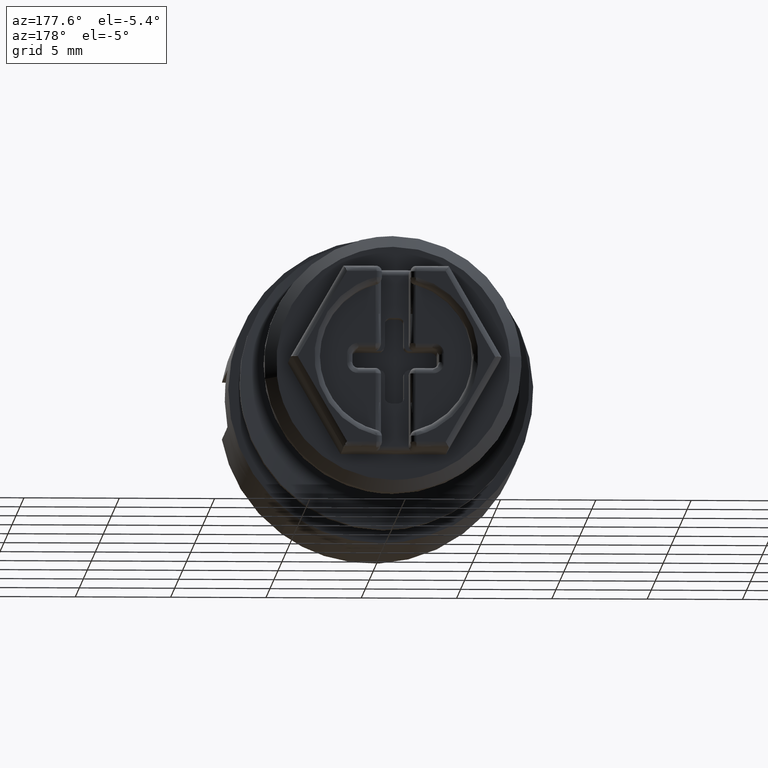
[diagram: clean part render]
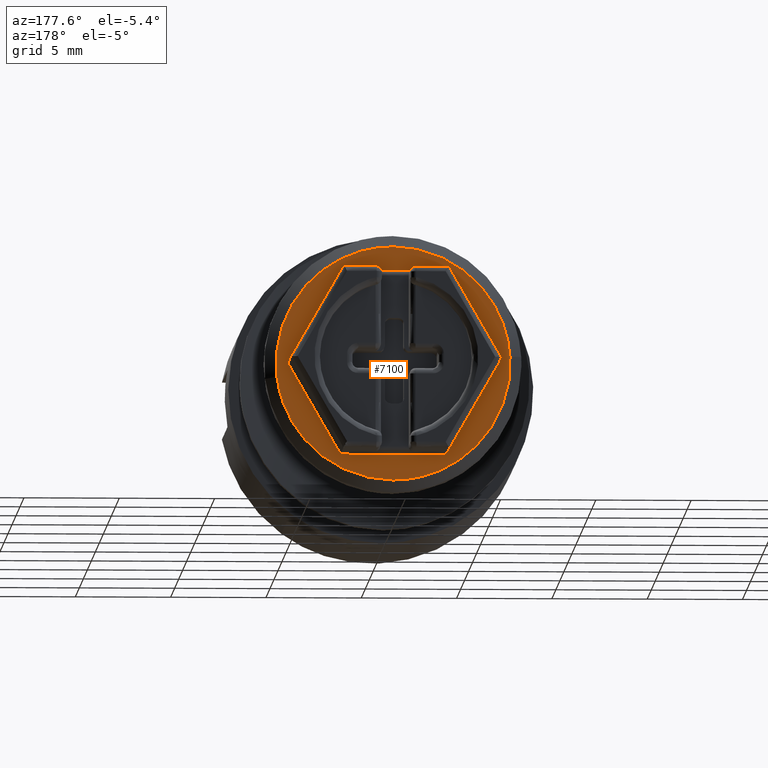
[diagram: same view with one face highlighted and labeled with its STEP entity id]
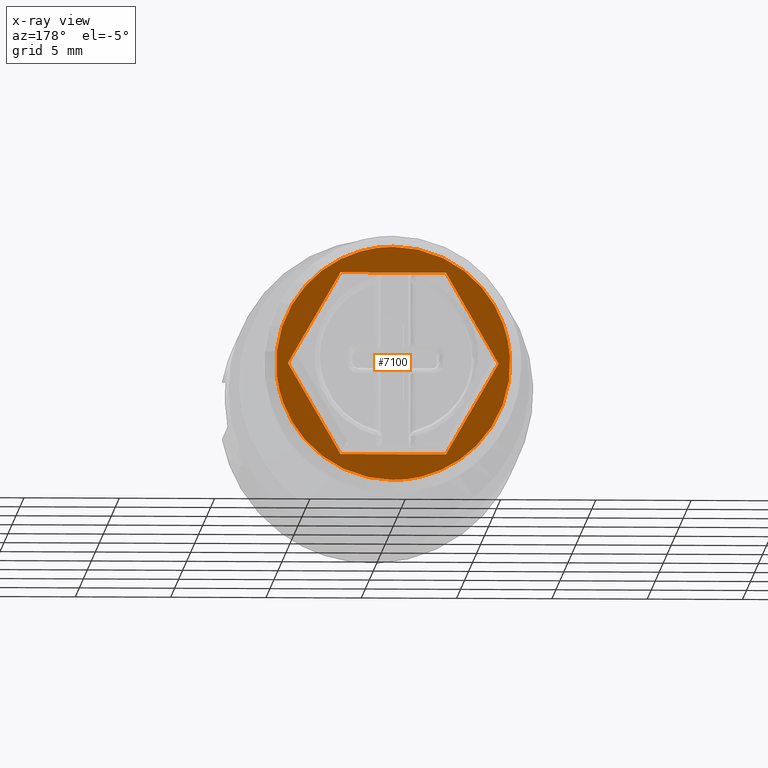
[diagram: x-ray of the same camera — body ghosted, the highlighted face saturated]
A machine part, auxiliary view. The second image highlights one B-rep face of the part: STEP entity #7100.
The next image is the same camera in x-ray: the body ghosted, the highlighted face saturated — about 0% of this face is hidden behind the body in this view.
In plain terms, the highlighted face is a freeform B-spline surface patch.
Its self-contained STEP definition (entity closure, byte-faithful):
#1848=CARTESIAN_POINT('',(6.094596225742974,19.950001138303119,-0.724435129881854));
#1849=VERTEX_POINT('',#1848);
#1855=CARTESIAN_POINT('',(0.0,19.950001138308998,6.137500275507410));
#1856=VERTEX_POINT('',#1855);
#1857=CARTESIAN_POINT('',(6.094596225742974,19.950001138303122,-0.724435129881854));
#1858=CARTESIAN_POINT('',(6.137500259499210,19.950001138308998,-0.363488033778135));
#1859=CARTESIAN_POINT('',(6.137500259499209,19.950001138308998,0.000000016008201));
#1860=CARTESIAN_POINT('',(6.137500259499209,19.950001138309002,6.137500275507409));
#1861=CARTESIAN_POINT('',(0.0,19.950001138308998,6.137500275507410));
#1869=(BOUNDED_CURVE()B_SPLINE_CURVE(2,(#1857,#1858,#1859,#1860,#1861),.UNSPECIFIED.,.F.,.U.)B_SPLINE_CURVE_WITH_KNOTS((3,2,3),(0.229562473512674,0.250000000000000,0.500000000000000),.UNSPECIFIED.)CURVE()GEOMETRIC_REPRESENTATION_ITEM()RATIONAL_B_SPLINE_CURVE((0.956026754182064,0.976055948330167,1.0,0.707106781186548,1.0))REPRESENTATION_ITEM(''));
#1870=EDGE_CURVE('',#1849,#1856,#1869,.T.);
#1872=CARTESIAN_POINT('',(-6.126052584333744,19.950001138302682,0.374685443301269));
#1873=VERTEX_POINT('',#1872);
#1874=CARTESIAN_POINT('',(0.0,19.950001138308998,6.137500275507410));
#1875=CARTESIAN_POINT('',(-5.773583729641632,19.950001138308998,6.137500275507408));
#1876=CARTESIAN_POINT('',(-6.126052584333744,19.950001138302671,0.374685443301269));
#1884=(BOUNDED_CURVE()B_SPLINE_CURVE(2,(#1874,#1875,#1876),.UNSPECIFIED.,.F.,.U.)B_SPLINE_CURVE_WITH_KNOTS((3,3),(0.500000000000000,0.739332962238850),.UNSPECIFIED.)CURVE()GEOMETRIC_REPRESENTATION_ITEM()RATIONAL_B_SPLINE_CURVE((1.0,0.719603993286820,0.976072041666518))REPRESENTATION_ITEM(''));
#1885=EDGE_CURVE('',#1856,#1873,#1884,.T.);
#1919=CARTESIAN_POINT('',(0.0,19.950001138308998,-6.137500243491008));
#1920=VERTEX_POINT('',#1919);
#1921=CARTESIAN_POINT('',(-6.126052584333744,19.950001138302671,0.374685443301269));
#1922=CARTESIAN_POINT('',(-6.137500259499209,19.950001138309005,0.187517608737226));
#1923=CARTESIAN_POINT('',(-6.137500259499209,19.950001138308998,0.000000016008201));
#1924=CARTESIAN_POINT('',(-6.137500259499209,19.950001138309002,-6.137500243491007));
#1925=CARTESIAN_POINT('',(0.0,19.950001138308998,-6.137500243491008));
#1933=(BOUNDED_CURVE()B_SPLINE_CURVE(2,(#1921,#1922,#1923,#1924,#1925),.UNSPECIFIED.,.F.,.U.)B_SPLINE_CURVE_WITH_KNOTS((3,2,3),(0.739332962238850,0.750000000000000,1.0),.UNSPECIFIED.)CURVE()GEOMETRIC_REPRESENTATION_ITEM()RATIONAL_B_SPLINE_CURVE((0.976072041666518,0.987502787899728,1.0,0.707106781186548,1.0))REPRESENTATION_ITEM(''));
#1934=EDGE_CURVE('',#1873,#1920,#1933,.T.);
#1936=CARTESIAN_POINT('',(0.0,19.950001138308998,-6.137500243491008));
#1937=CARTESIAN_POINT('',(5.451171383410622,19.950001138309005,-6.137500243491007));
#1938=CARTESIAN_POINT('',(6.094596225742975,19.950001138303119,-0.724435129881854));
#1946=(BOUNDED_CURVE()B_SPLINE_CURVE(2,(#1936,#1937,#1938),.UNSPECIFIED.,.F.,.U.)B_SPLINE_CURVE_WITH_KNOTS((3,3),(0.0,0.229562473512674),.UNSPECIFIED.)CURVE()GEOMETRIC_REPRESENTATION_ITEM()RATIONAL_B_SPLINE_CURVE((1.0,0.731050832856380,0.956026754182064))REPRESENTATION_ITEM(''));
#1947=EDGE_CURVE('',#1920,#1849,#1946,.T.);
#6806=CARTESIAN_POINT('',(5.525000262423791,19.950001138309052,-1.989520E-013));
#6807=VERTEX_POINT('',#6806);
#6814=CARTESIAN_POINT('',(2.762500131211880,19.950001138308998,4.784790583174300));
#6815=VERTEX_POINT('',#6814);
#6821=CARTESIAN_POINT('',(5.525000262423791,19.950001138309052,-1.989520E-013));
#6822=CARTESIAN_POINT('',(2.762500131211880,19.950001138308998,4.784790583174300));
#6823=QUASI_UNIFORM_CURVE('',1,(#6821,#6822),.UNSPECIFIED.,.F.,.U.);
#6824=EDGE_CURVE('',#6807,#6815,#6823,.T.);
#6834=CARTESIAN_POINT('',(2.762500131212080,19.950001138309052,-4.784790583174329));
#6835=VERTEX_POINT('',#6834);
#6843=CARTESIAN_POINT('',(2.762500131212080,19.950001138309052,-4.784790583174329));
#6844=CARTESIAN_POINT('',(5.525000262423791,19.950001138309052,-1.989520E-013));
#6845=QUASI_UNIFORM_CURVE('',1,(#6843,#6844),.UNSPECIFIED.,.F.,.U.);
#6846=EDGE_CURVE('',#6835,#6807,#6845,.T.);
#6859=CARTESIAN_POINT('',(-2.762500131211825,19.950001138309052,-4.784790583174329));
#6860=VERTEX_POINT('',#6859);
#6861=CARTESIAN_POINT('',(-2.762500131211825,19.950001138309052,-4.784790583174329));
#6862=CARTESIAN_POINT('',(2.762500131212080,19.950001138309052,-4.784790583174329));
#6863=QUASI_UNIFORM_CURVE('',1,(#6861,#6862),.UNSPECIFIED.,.F.,.U.);
#6864=EDGE_CURVE('',#6860,#6835,#6863,.T.);
#6882=CARTESIAN_POINT('',(-5.525000262423820,19.950001138309052,1.989520E-013));
#6883=VERTEX_POINT('',#6882);
#6891=CARTESIAN_POINT('',(-5.525000262423820,19.950001138309052,1.989520E-013));
#6892=CARTESIAN_POINT('',(-2.762500131211825,19.950001138309052,-4.784790583174329));
#6893=QUASI_UNIFORM_CURVE('',1,(#6891,#6892),.UNSPECIFIED.,.F.,.U.);
#6894=EDGE_CURVE('',#6883,#6860,#6893,.T.);
#6904=CARTESIAN_POINT('',(-2.762500131212020,19.950001138309052,4.784790583174500));
#6905=VERTEX_POINT('',#6904);
#6913=CARTESIAN_POINT('',(-2.762500131212020,19.950001138309052,4.784790583174500));
#6914=CARTESIAN_POINT('',(-5.525000262423820,19.950001138309052,1.989520E-013));
#6915=QUASI_UNIFORM_CURVE('',1,(#6913,#6914),.UNSPECIFIED.,.F.,.U.);
#6916=EDGE_CURVE('',#6905,#6883,#6915,.T.);
#6933=CARTESIAN_POINT('',(2.762500131211880,19.950001138308998,4.784790583174300));
#6934=CARTESIAN_POINT('',(-2.762500131212020,19.950001138309052,4.784790583174500));
#6935=QUASI_UNIFORM_CURVE('',1,(#6933,#6934),.UNSPECIFIED.,.F.,.U.);
#6936=EDGE_CURVE('',#6815,#6905,#6935,.T.);
#7081=CARTESIAN_POINT('',(-6.750487360788685,19.950001138308998,6.750636527640048));
#7082=CARTESIAN_POINT('',(-6.750487360788685,19.950001138308998,-6.750636824864817));
#7083=CARTESIAN_POINT('',(6.750524894282120,19.950001138308998,6.750636527640048));
#7084=CARTESIAN_POINT('',(6.750524894282120,19.950001138308998,-6.750636824864817));
#7085=B_SPLINE_SURFACE_WITH_KNOTS('',1,1,((#7081,#7083),(#7082,#7084)),.UNSPECIFIED.,.F.,.F.,.U.,(2,2),(2,2),(0.0,13.501273352504860),(0.0,13.501012255070810),.UNSPECIFIED.);
#7086=ORIENTED_EDGE('',*,*,#1934,.F.);
#7087=ORIENTED_EDGE('',*,*,#1885,.F.);
#7088=ORIENTED_EDGE('',*,*,#1870,.F.);
#7089=ORIENTED_EDGE('',*,*,#1947,.F.);
#7090=EDGE_LOOP('',(#7086,#7087,#7088,#7089));
#7091=FACE_OUTER_BOUND('',#7090,.T.);
#7092=ORIENTED_EDGE('',*,*,#6824,.T.);
#7093=ORIENTED_EDGE('',*,*,#6936,.T.);
#7094=ORIENTED_EDGE('',*,*,#6916,.T.);
#7095=ORIENTED_EDGE('',*,*,#6894,.T.);
#7096=ORIENTED_EDGE('',*,*,#6864,.T.);
#7097=ORIENTED_EDGE('',*,*,#6846,.T.);
#7098=EDGE_LOOP('',(#7092,#7093,#7094,#7095,#7096,#7097));
#7099=FACE_BOUND('',#7098,.T.);
#7100=ADVANCED_FACE('',(#7091,#7099),#7085,.F.);